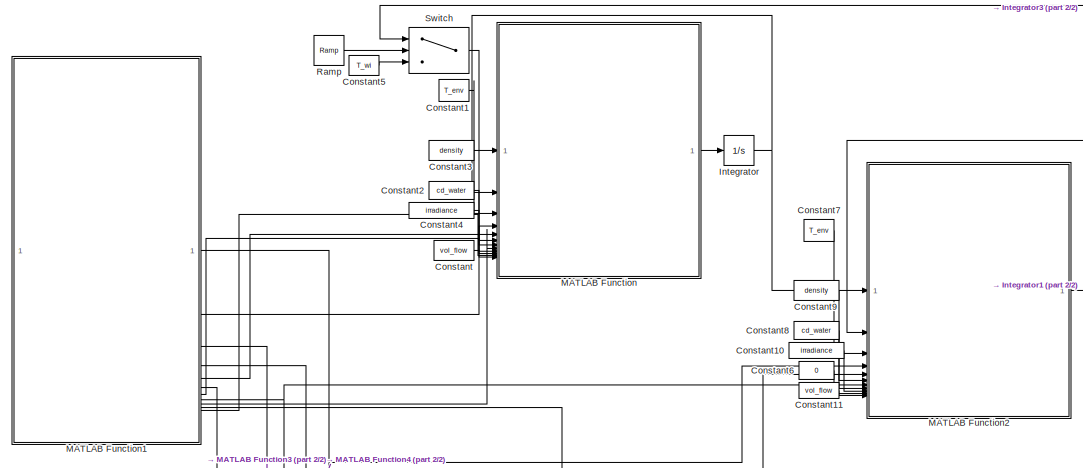
[diagram: root canvas - part 1/2, top left region]
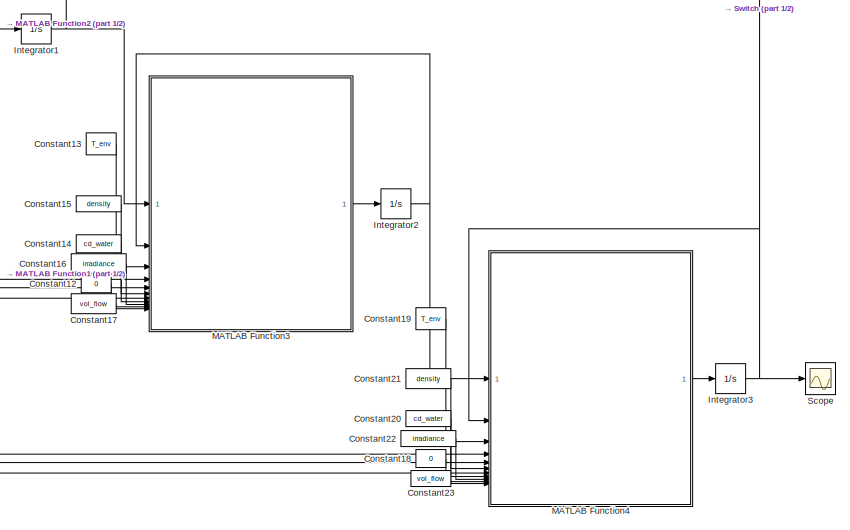
[diagram: root canvas - part 2/2, middle right region]
MODEL slx_5bdc4e5e84a2
KIND model
CONFIG AbsTol = auto
CONFIG EnableMultiTasking = off
CONFIG FixedStep = auto
CONFIG MaxStep = auto
CONFIG MinStep = auto
CONFIG RelTol = 1e-3
CONFIG SampleTimeConstraint = Unconstrained
CONFIG SolverName = VariableStepAuto
CONFIG StartTime = 0.0
CONFIG StopTime = 1800
WORKSPACE source: mxarray member
WORKSPACE T_env = 293
WORKSPACE T_in = 288
WORKSPACE T_wi = 288
WORKSPACE cd_water = 4180
WORKSPACE density = 1000
WORKSPACE irradiance = 1000
WORKSPACE vol_flow = 0.0166666666667
BLOCK [Constant] Constant
  Value = vol_flow
BLOCK [Constant] Constant1
  Value = T_env
BLOCK [Constant] Constant10
  Value = irradiance
BLOCK [Constant] Constant11
  Value = vol_flow
BLOCK [Constant] Constant12
  Value = 0
BLOCK [Constant] Constant13
  Value = T_env
BLOCK [Constant] Constant14
  Value = cd_water
BLOCK [Constant] Constant15
  Value = density
BLOCK [Constant] Constant16
  Value = irradiance
BLOCK [Constant] Constant17
  Value = vol_flow
BLOCK [Constant] Constant18
  Value = 0
BLOCK [Constant] Constant19
  Value = T_env
BLOCK [Constant] Constant2
  Value = cd_water
BLOCK [Constant] Constant20
  Value = cd_water
BLOCK [Constant] Constant21
  Value = density
BLOCK [Constant] Constant22
  Value = irradiance
BLOCK [Constant] Constant23
  Value = vol_flow
BLOCK [Constant] Constant3
  Value = density
BLOCK [Constant] Constant4
  Value = irradiance
BLOCK [Constant] Constant5
  Value = T_wi
BLOCK [Constant] Constant6
  Value = 0
BLOCK [Constant] Constant7
  Value = T_env
BLOCK [Constant] Constant8
  Value = cd_water
BLOCK [Constant] Constant9
  Value = density
BLOCK [Integrator] Integrator
  InitialCondition = 288
BLOCK [Integrator] Integrator1
  InitialCondition = 288
BLOCK [Integrator] Integrator2
  InitialCondition = 288
BLOCK [Integrator] Integrator3
  InitialCondition = 288
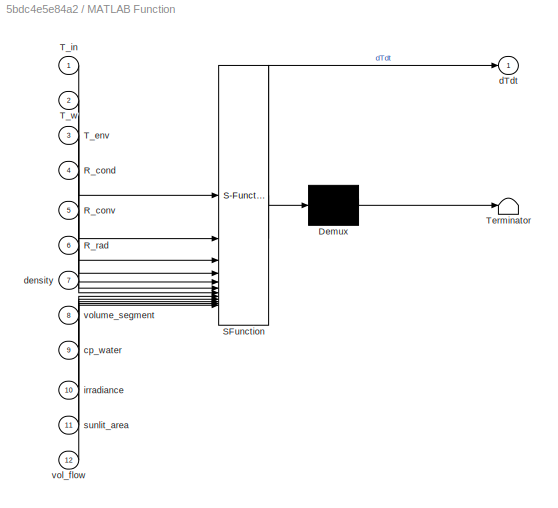
BLOCK [SubSystem] MATLAB Function
  ErrorFcn = Stateflow.Translate.translate
  PermitHierarchicalResolution = ExplicitOnly
  SFBlockType = MATLAB Function
  TreatAsAtomicUnit = on
BLOCK [Demux] MATLAB Function/ Demux 
  Outputs = 1
BLOCK [S-Function] MATLAB Function/ SFunction 
  EnableBusSupport = on
  FunctionName = sf_sfun
  PortCounts = [12 2]
  SFcnIsStateOwnerBlock = off
  SFunctionDeploymentMode = off
  Tag = Stateflow S-Function 2
BLOCK [Terminator] MATLAB Function/ Terminator 
BLOCK [Inport] MATLAB Function/R_cond
  Port = 4
BLOCK [Inport] MATLAB Function/R_conv
  Port = 5
BLOCK [Inport] MATLAB Function/R_rad
  Port = 6
BLOCK [Inport] MATLAB Function/T_env
  Port = 3
BLOCK [Inport] MATLAB Function/T_in
BLOCK [Inport] MATLAB Function/T_w
  Port = 2
BLOCK [Inport] MATLAB Function/cp_water
  Port = 9
BLOCK [Outport] MATLAB Function/dTdt
BLOCK [Inport] MATLAB Function/density
  Port = 7
BLOCK [Inport] MATLAB Function/irradiance
  Port = 10
BLOCK [Inport] MATLAB Function/sunlit_area
  Port = 11
BLOCK [Inport] MATLAB Function/vol_flow
  Port = 12
BLOCK [Inport] MATLAB Function/volume_segment
  Port = 8
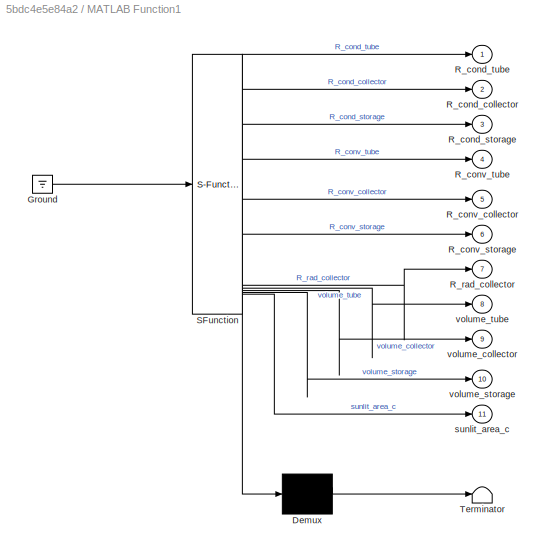
BLOCK [SubSystem] MATLAB Function1
  ErrorFcn = Stateflow.Translate.translate
  PermitHierarchicalResolution = ExplicitOnly
  SFBlockType = MATLAB Function
  TreatAsAtomicUnit = on
BLOCK [Demux] MATLAB Function1/ Demux 
  Outputs = 1
BLOCK [Ground] MATLAB Function1/ Ground 
BLOCK [S-Function] MATLAB Function1/ SFunction 
  EnableBusSupport = on
  FunctionName = sf_sfun
  PortCounts = [1 12]
  SFcnIsStateOwnerBlock = off
  SFunctionDeploymentMode = off
  Tag = Stateflow S-Function 1
BLOCK [Terminator] MATLAB Function1/ Terminator 
BLOCK [Outport] MATLAB Function1/R_cond_collector
  Port = 2
BLOCK [Outport] MATLAB Function1/R_cond_storage
  Port = 3
BLOCK [Outport] MATLAB Function1/R_cond_tube
BLOCK [Outport] MATLAB Function1/R_conv_collector
  Port = 5
BLOCK [Outport] MATLAB Function1/R_conv_storage
  Port = 6
BLOCK [Outport] MATLAB Function1/R_conv_tube
  Port = 4
BLOCK [Outport] MATLAB Function1/R_rad_collector
  Port = 7
BLOCK [Outport] MATLAB Function1/sunlit_area_c
  Port = 11
BLOCK [Outport] MATLAB Function1/volume_collector
  Port = 9
BLOCK [Outport] MATLAB Function1/volume_storage
  Port = 10
BLOCK [Outport] MATLAB Function1/volume_tube
  Port = 8
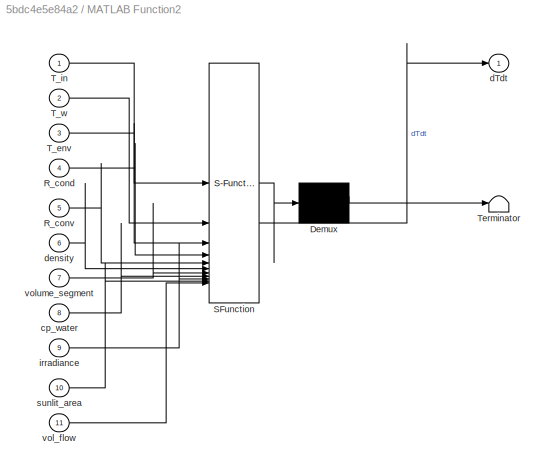
BLOCK [SubSystem] MATLAB Function2
  ErrorFcn = Stateflow.Translate.translate
  PermitHierarchicalResolution = ExplicitOnly
  SFBlockType = MATLAB Function
  TreatAsAtomicUnit = on
BLOCK [Demux] MATLAB Function2/ Demux 
  Outputs = 1
BLOCK [S-Function] MATLAB Function2/ SFunction 
  EnableBusSupport = on
  FunctionName = sf_sfun
  PortCounts = [11 2]
  SFcnIsStateOwnerBlock = off
  SFunctionDeploymentMode = off
  Tag = Stateflow S-Function 3
BLOCK [Terminator] MATLAB Function2/ Terminator 
BLOCK [Inport] MATLAB Function2/R_cond
  Port = 4
BLOCK [Inport] MATLAB Function2/R_conv
  Port = 5
BLOCK [Inport] MATLAB Function2/T_env
  Port = 3
BLOCK [Inport] MATLAB Function2/T_in
BLOCK [Inport] MATLAB Function2/T_w
  Port = 2
BLOCK [Inport] MATLAB Function2/cp_water
  Port = 8
BLOCK [Outport] MATLAB Function2/dTdt
BLOCK [Inport] MATLAB Function2/density
  Port = 6
BLOCK [Inport] MATLAB Function2/irradiance
  Port = 9
BLOCK [Inport] MATLAB Function2/sunlit_area
  Port = 10
BLOCK [Inport] MATLAB Function2/vol_flow
  Port = 11
BLOCK [Inport] MATLAB Function2/volume_segment
  Port = 7
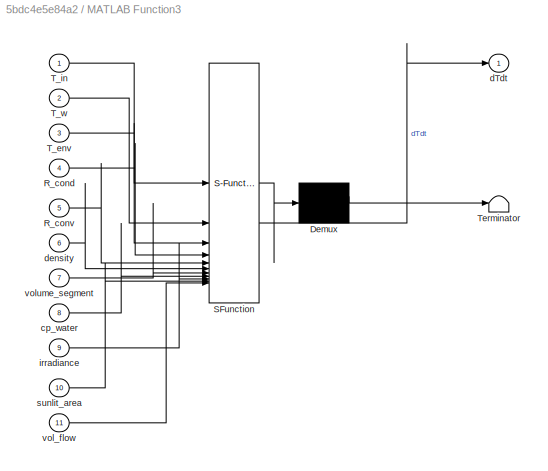
BLOCK [SubSystem] MATLAB Function3
  ErrorFcn = Stateflow.Translate.translate
  PermitHierarchicalResolution = ExplicitOnly
  SFBlockType = MATLAB Function
  TreatAsAtomicUnit = on
BLOCK [Demux] MATLAB Function3/ Demux 
  Outputs = 1
BLOCK [S-Function] MATLAB Function3/ SFunction 
  EnableBusSupport = on
  FunctionName = sf_sfun
  PortCounts = [11 2]
  SFcnIsStateOwnerBlock = off
  SFunctionDeploymentMode = off
  Tag = Stateflow S-Function 4
BLOCK [Terminator] MATLAB Function3/ Terminator 
BLOCK [Inport] MATLAB Function3/R_cond
  Port = 4
BLOCK [Inport] MATLAB Function3/R_conv
  Port = 5
BLOCK [Inport] MATLAB Function3/T_env
  Port = 3
BLOCK [Inport] MATLAB Function3/T_in
BLOCK [Inport] MATLAB Function3/T_w
  Port = 2
BLOCK [Inport] MATLAB Function3/cp_water
  Port = 8
BLOCK [Outport] MATLAB Function3/dTdt
BLOCK [Inport] MATLAB Function3/density
  Port = 6
BLOCK [Inport] MATLAB Function3/irradiance
  Port = 9
BLOCK [Inport] MATLAB Function3/sunlit_area
  Port = 10
BLOCK [Inport] MATLAB Function3/vol_flow
  Port = 11
BLOCK [Inport] MATLAB Function3/volume_segment
  Port = 7
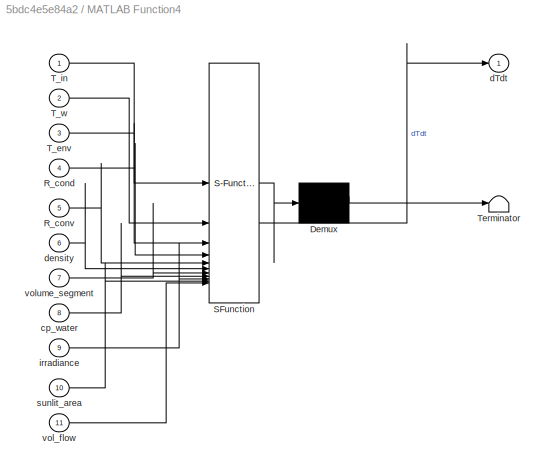
BLOCK [SubSystem] MATLAB Function4
  ErrorFcn = Stateflow.Translate.translate
  PermitHierarchicalResolution = ExplicitOnly
  SFBlockType = MATLAB Function
  TreatAsAtomicUnit = on
BLOCK [Demux] MATLAB Function4/ Demux 
  Outputs = 1
BLOCK [S-Function] MATLAB Function4/ SFunction 
  EnableBusSupport = on
  FunctionName = sf_sfun
  PortCounts = [11 2]
  SFcnIsStateOwnerBlock = off
  SFunctionDeploymentMode = off
  Tag = Stateflow S-Function 5
BLOCK [Terminator] MATLAB Function4/ Terminator 
BLOCK [Inport] MATLAB Function4/R_cond
  Port = 4
BLOCK [Inport] MATLAB Function4/R_conv
  Port = 5
BLOCK [Inport] MATLAB Function4/T_env
  Port = 3
BLOCK [Inport] MATLAB Function4/T_in
BLOCK [Inport] MATLAB Function4/T_w
  Port = 2
BLOCK [Inport] MATLAB Function4/cp_water
  Port = 8
BLOCK [Outport] MATLAB Function4/dTdt
BLOCK [Inport] MATLAB Function4/density
  Port = 6
BLOCK [Inport] MATLAB Function4/irradiance
  Port = 9
BLOCK [Inport] MATLAB Function4/sunlit_area
  Port = 10
BLOCK [Inport] MATLAB Function4/vol_flow
  Port = 11
BLOCK [Inport] MATLAB Function4/volume_segment
  Port = 7
BLOCK [Reference] Ramp  REF=simulink/Sources/Ramp
  SourceBlock = simulink/Sources/Ramp
  SourceType = Ramp
BLOCK [Scope] Scope
  Floating = off
  NumInputPorts = 1
  ScopeSpecificationString = Simulink.scopes.TimeScopeBlockCfg('CurrentConfiguration', extmgr.ConfigurationSet(extmgr.Configuration('Core','General UI',true),extmgr.Configuration('Core','Source UI',true),extmgr.Configuration('Sources','WiredSimulink',true),extmgr.Configuration('Visuals','Time Domain',true,'SerializedDisplays',{struct('MinYLimReal','310.14343','MaxYLimReal','311.76534','YLabelReal','','MinYLimMag','310.14343',...<+1418ch>
BLOCK [Switch] Switch
  InputSameDT = off
  SaturateOnIntegerOverflow = off
  Threshold = 0.1
LINE Constant10:1 -> MATLAB Function2:9
LINE Constant11:1 -> MATLAB Function2:11
LINE Constant12:1 -> MATLAB Function3:10
LINE Constant13:1 -> MATLAB Function3:3
LINE Constant14:1 -> MATLAB Function3:8
LINE Constant15:1 -> MATLAB Function3:6
LINE Constant16:1 -> MATLAB Function3:9
LINE Constant17:1 -> MATLAB Function3:11
LINE Constant18:1 -> MATLAB Function4:10
LINE Constant19:1 -> MATLAB Function4:3
LINE Constant1:1 -> MATLAB Function:3
LINE Constant20:1 -> MATLAB Function4:8
LINE Constant21:1 -> MATLAB Function4:6
LINE Constant22:1 -> MATLAB Function4:9
LINE Constant23:1 -> MATLAB Function4:11
LINE Constant2:1 -> MATLAB Function:9
LINE Constant3:1 -> MATLAB Function:7
LINE Constant4:1 -> MATLAB Function:10
LINE Constant5:1 -> Switch:3
LINE Constant6:1 -> MATLAB Function2:10
LINE Constant7:1 -> MATLAB Function2:3
LINE Constant8:1 -> MATLAB Function2:8
LINE Constant9:1 -> MATLAB Function2:6
LINE Constant:1 -> MATLAB Function:12
NET Integrator1:1 -> MATLAB Function2:2, MATLAB Function3:1
NET Integrator2:1 -> MATLAB Function3:2, MATLAB Function4:1
NET Integrator3:1 -> MATLAB Function4:2, Scope:1, Switch:1
NET Integrator:1 -> MATLAB Function2:1, MATLAB Function:2
NET MATLAB Function1:1 -> MATLAB Function2:4, MATLAB Function4:4
LINE MATLAB Function1:10 -> MATLAB Function3:7
LINE MATLAB Function1:11 -> MATLAB Function:11
LINE MATLAB Function1:2 -> MATLAB Function:4
LINE MATLAB Function1:3 -> MATLAB Function3:4
NET MATLAB Function1:4 -> MATLAB Function2:5, MATLAB Function4:5
LINE MATLAB Function1:5 -> MATLAB Function:5
LINE MATLAB Function1:6 -> MATLAB Function3:5
LINE MATLAB Function1:7 -> MATLAB Function:6
NET MATLAB Function1:8 -> MATLAB Function2:7, MATLAB Function4:7
LINE MATLAB Function1:9 -> MATLAB Function:8
LINE MATLAB Function2:1 -> Integrator1:1
LINE MATLAB Function3:1 -> Integrator2:1
LINE MATLAB Function4:1 -> Integrator3:1
LINE MATLAB Function:1 -> Integrator:1
LINE Ramp:1 -> Switch:2
LINE Switch:1 -> MATLAB Function:1
note: NET lines group one-source signal fan-out (src -> all destinations, sorted); 1:1 wires keep LINE
CHART MATLAB Function1 states=1 transitions=1
  STATE_LABEL 'eML_blk_kernel()'
  STATE_LABEL 'SCRIPT:\nfunction [R_cond_tube, R_cond_collector, R_cond_storage, R_conv_tube, R_conv_collector, R_conv_storage, R_rad_collector, volume_tube, volume_collector, volume_storage, sunlit_area_c] = ThermalProperties()\n\nS_B = 5.67*10e-9; % Stefan-Boltzmann\nh_c_air = 25.5; % Natural convection, 25-20 C, 1 atm\n\nk_pvc = 0.19;\nk_i = 0.022;\nk_floor = 0.30;\nk_al = 237;\nk_PU = 0.13;\n\nem_pvc = 0.92;\nem_i = 0.8;...<+1385ch>'
CHART MATLAB Function states=1 transitions=1
  STATE_LABEL 'eML_blk_kernel()'
  STATE_LABEL 'SCRIPT:\nfunction dTdt  = Collector (T_in, T_w, T_env, R_cond, R_conv, R_rad, density, volume_segment, cp_water, irradiance, sunlit_area, vol_flow)\n\n    a = [1/R_rad, 0, 0, (1/R_cond + 1/R_conv), -(irradiance*sunlit_area + (T_env^4)/R_rad + T_w/R_cond + T_env/R_conv)];\n\n    Ts = roots(a);\n\n    for i = 1:4\n        if isreal(Ts(i)) == true && Ts(i) > 0 \n            T_outer = Ts(i);\n        end\n    en...<+322ch>'
CHART MATLAB Function2 states=1 transitions=1
  STATE_LABEL 'eML_blk_kernel()'
  STATE_LABEL 'SCRIPT:\nfunction dTdt  = Tube (T_in, T_w, T_env, R_cond, R_conv, density, volume_segment, cp_water, irradiance, sunlit_area, vol_flow)\n\n    T_outer = ((irradiance*sunlit_area)+T_w/R_cond+T_env/R_conv)/(1/R_cond + 1/R_conv);\n\n    Q_dot = density*vol_flow*cp_water*(T_in-T_w) - (T_w - T_outer)/R_cond; % solve for heat conducted from water to outer surface\n\n    dTdt = Q_dot / (density * volume_segment...<+55ch>'
CHART MATLAB Function3 states=1 transitions=1
  STATE_LABEL 'eML_blk_kernel()'
  STATE_LABEL 'SCRIPT:\nfunction dTdt  = Storage (T_in, T_w, T_env, R_cond, R_conv, density, volume_segment, cp_water, irradiance, sunlit_area, vol_flow)\n\n    T_outer = ((irradiance*sunlit_area)+T_w/R_cond+T_env/R_conv)/(1/R_cond + 1/R_conv);\n\n    Q_dot = density*vol_flow*cp_water*(T_in-T_w) - (T_w - T_outer)/R_cond; % solve for heat conducted from water to outer surface\n\n    dTdt = Q_dot / (density * volume_segm...<+57ch>'
CHART MATLAB Function4 states=1 transitions=1
  STATE_LABEL 'eML_blk_kernel()'
  STATE_LABEL 'SCRIPT:\nfunction dTdt  = Tube (T_in, T_w, T_env, R_cond, R_conv, density, volume_segment, cp_water, irradiance, sunlit_area, vol_flow)\n\n    T_outer = ((irradiance*sunlit_area)+T_w/R_cond+T_env/R_conv)/(1/R_cond + 1/R_conv);\n\n    Q_dot = density*vol_flow*cp_water*(T_in-T_w) - (T_w - T_outer)/R_cond; % solve for heat conducted from water to outer surface\n\n    dTdt = Q_dot / (density * volume_segment...<+55ch>'
CHART  states=0 transitions=0
CHART  states=0 transitions=0
CHART  states=0 transitions=0
CHART  states=0 transitions=0
CHART  states=0 transitions=0
